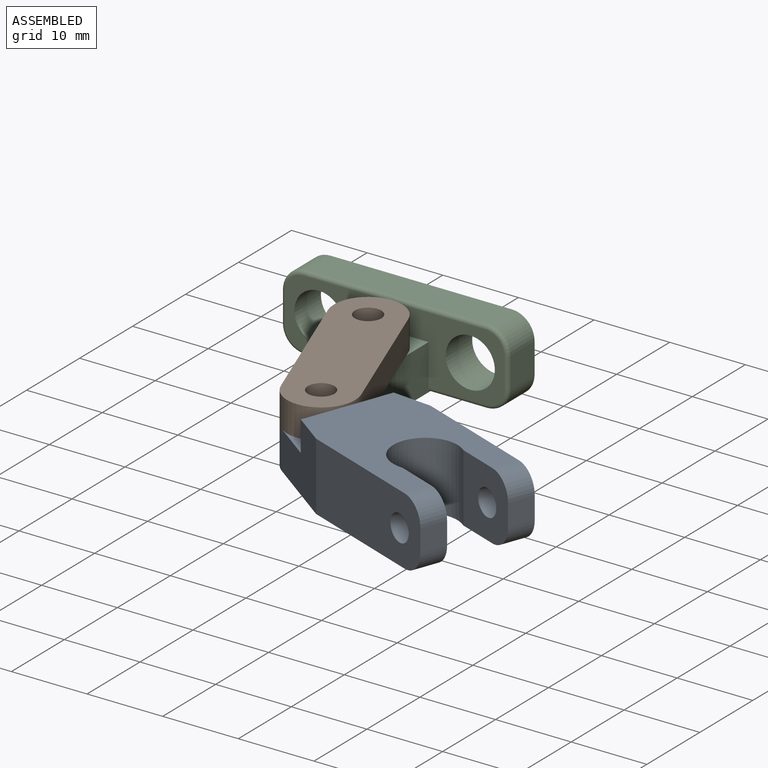
[diagram: assembled view]
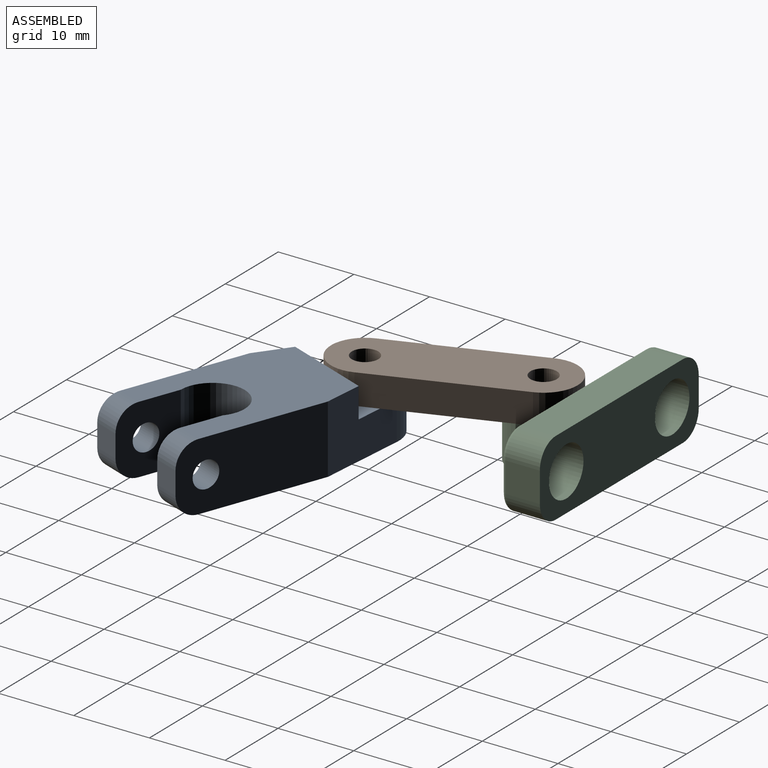
[diagram: assembled view, second angle]
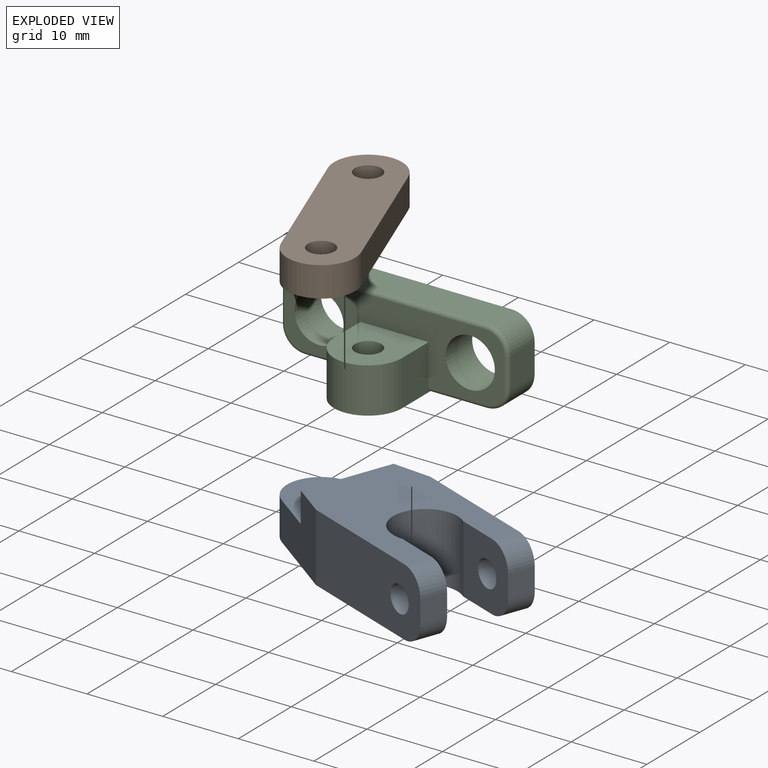
[diagram: exploded view]
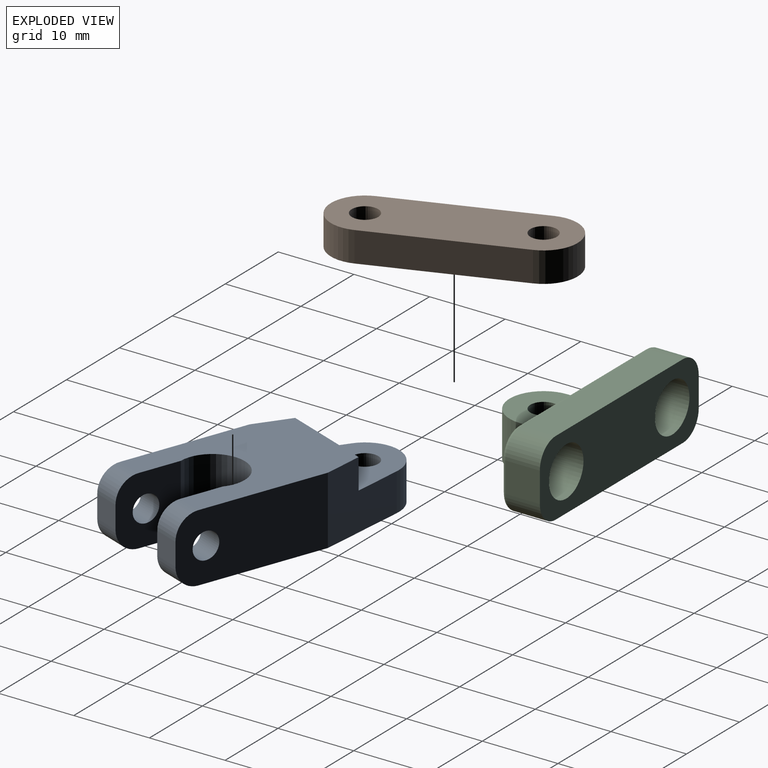
[diagram: exploded view, second angle]
ASSEMBLY  parts=3 mates=2
PART A: 28 faces, bbox 34.5x15x9 mm
  f0: plane 3.5x3mm, normal (1,0,0), area 10.5mm2, adj f7,f19,f24,f25
  f1: cylinder r=1.75mm len=3.5mm, axis (0,0,-1), area 27.5mm2, adj f10,f18
  f2: plane 31.5x15mm, normal (0,0,-1), area 297.7mm2, adj f3,f4,f5,f7,f9,f12,f13,f14
  f3: plane 11.22x9mm, normal (-0.27,0.96,0), area 79.1mm2, adj f2,f4,f6,f9,f10,f11
  f4: cylinder r=4.5mm len=8.66mm, axis (0,0,-1), area 58.3mm2, adj f2,f3,f5,f10
  f5: plane 11.22x9mm, normal (-0.27,-0.96,0), area 79.1mm2, adj f2,f4,f6,f7,f10,f11
  f6: plane 22x15mm, normal (0,0,1), area 238.1mm2, adj f3,f5,f7,f9,f11,f19,f20,f21
  f7: plane 20x9mm, normal (0,-1,0), area 166.5mm2, adj f0,f2,f5,f6,f23,f24,f25
  f8: plane 3.5x3mm, normal (1,0,0), area 10.5mm2, adj f9,f20,f26,f27
  f9: plane 20x9mm, normal (0,1,0), area 166.5mm2, adj f2,f3,f6,f8,f22,f26,f27
  f10: plane 12.18x9.5mm, normal (0,0,1), area 76.2mm2, adj f1,f3,f4,f5,f11
  f11: plane 12.18x4mm, normal (-1,0,0), area 48.7mm2, adj f3,f5,f6,f10
  f12: plane 2.75x2.5mm, normal (-0.5,0.87,0), area 7.9mm2, adj f2,f13,f17,f18
  f13: plane 2.75x2.5mm, normal (0.5,0.87,0), area 7.9mm2, adj f2,f12,f14,f18
  f14: plane 3.18x2.5mm, normal (1,0,0), area 7.9mm2, adj f2,f13,f15,f18
  f15: plane 2.75x2.5mm, normal (0.5,-0.87,0), area 7.9mm2, adj f2,f14,f16,f18
  f16: plane 2.75x2.5mm, normal (-0.5,-0.87,0), area 7.9mm2, adj f2,f15,f17,f18
  f17: plane 3.18x2.5mm, normal (-1,0,0), area 7.9mm2, adj f2,f12,f16,f18
  f18: plane 6.35x5.5mm, normal (0,0,-1), area 16.6mm2, adj f1,f12,f13,f14,f15,f16,f17
  f19: plane 9x8.56mm, normal (0,1,0), area 63.6mm2, adj f0,f2,f6,f21,f23,f24,f25
  f20: plane 9x8.56mm, normal (0,-1,0), area 63.6mm2, adj f2,f6,f8,f21,f22,f26,f27
  f21: cylinder r=4.25mm len=9mm, axis (0,0,1), area 146.5mm2, adj f2,f6,f19,f20
  f22: cylinder r=1.75mm len=3.5mm, axis (0,-1,0), area 38.5mm2, adj f9,f20
  f23: cylinder r=1.75mm len=3.5mm, axis (0,-1,0), area 38.5mm2, adj f7,f19
  f24: cylinder r=3mm len=3.5mm, axis (0,1,0), area 16.5mm2, adj f0,f2,f7,f19
  f25: cylinder r=3mm len=3.5mm, axis (0,-1,0), area 16.5mm2, adj f0,f6,f7,f19
  f26: cylinder r=3mm len=3.5mm, axis (0,1,0), area 16.5mm2, adj f2,f8,f9,f20
  f27: cylinder r=3mm len=3.5mm, axis (0,-1,0), area 16.5mm2, adj f6,f8,f9,f20
PART B: 8 faces, bbox 29x9x4 mm
  f0: plane 20x4mm, normal (0,1,0), area 80mm2, adj f1,f3,f6,f7
  f1: cylinder r=4.5mm len=9mm, axis (0,0,-1), area 56.5mm2, adj f0,f2,f6,f7
  f2: plane 20x4mm, normal (0,-1,0), area 80mm2, adj f1,f3,f6,f7
  f3: cylinder r=4.5mm len=9mm, axis (0,0,-1), area 56.5mm2, adj f0,f2,f6,f7
  f4: cylinder r=1.75mm len=4mm, axis (0,0,-1), area 44mm2, adj f6,f7
  f5: cylinder r=1.75mm len=4mm, axis (0,0,-1), area 44mm2, adj f6,f7
  f6: plane 29x9mm, normal (0,0,1), area 224.4mm2, adj f0,f1,f2,f3,f4,f5
  f7: plane 29x9mm, normal (0,0,-1), area 224.4mm2, adj f0,f1,f2,f3,f4,f5
PART C: 33 faces, bbox 30.5x14.5x10.5 mm
  f0: cylinder r=1.75mm len=3.5mm, axis (0,0,-1), area 38.5mm2, adj f12,f19
  f1: plane 24x14.5mm, normal (0,0,-1), area 163.1mm2, adj f2,f3,f4,f9,f13,f14,f15,f16
  f2: plane 6x5.5mm, normal (-1,0,0), area 30.1mm2, adj f1,f4,f7,f12,f32
  f3: plane 6x5.5mm, normal (1,0,0), area 30.1mm2, adj f1,f4,f7,f12,f24
  f4: cylinder r=4.5mm len=9mm, axis (0,0,-1), area 84.8mm2, adj f1,f2,f3,f12
  f5: plane 24x4.5mm, normal (0,0,1), area 108mm2, adj f9,f22,f23,f28
  f6: plane 4.5x4mm, normal (-1,0,0), area 18mm2, adj f9,f21,f23,f30
  f7: plane 29x9mm, normal (0,-1,0), area 139.8mm2, adj f2,f3,f10,f11,f12,f24,f25,f26
  f8: plane 4.5x4mm, normal (1,0,0), area 18mm2, adj f9,f20,f22,f26
  f9: plane 30x10mm, normal (0,1,0), area 225.9mm2, adj f1,f5,f6,f8,f10,f11,f20,f21
  f10: cylinder r=3.25mm len=6.5mm, axis (0,1,0), area 102.1mm2, adj f7,f9
  f11: cylinder r=3.25mm len=6.5mm, axis (0,1,0), area 102.1mm2, adj f7,f9
  f12: plane 9.5x9mm, normal (0,0,1), area 67.2mm2, adj f0,f2,f3,f4,f7
  f13: plane 2.75x2.5mm, normal (-0.5,0.87,0), area 7.9mm2, adj f1,f14,f18,f19
  f14: plane 2.75x2.5mm, normal (0.5,0.87,0), area 7.9mm2, adj f1,f13,f15,f19
  f15: plane 3.18x2.5mm, normal (1,0,0), area 7.9mm2, adj f1,f14,f16,f19
  f16: plane 2.75x2.5mm, normal (0.5,-0.87,0), area 7.9mm2, adj f1,f15,f17,f19
  f17: plane 2.75x2.5mm, normal (-0.5,-0.87,0), area 7.9mm2, adj f1,f16,f18,f19
  f18: plane 3.18x2.5mm, normal (-1,0,0), area 7.9mm2, adj f1,f13,f17,f19
  f19: plane 6.35x5.5mm, normal (0,0,-1), area 16.6mm2, adj f0,f13,f14,f15,f16,f17,f18
  f20: cylinder r=3mm len=4.5mm, axis (0,1,0), area 21.2mm2, adj f1,f8,f9,f25
  f21: cylinder r=3mm len=4.5mm, axis (0,-1,0), area 21.2mm2, adj f1,f6,f9,f31
  f22: cylinder r=3mm len=4.5mm, axis (0,-1,0), area 21.2mm2, adj f5,f8,f9,f27
  f23: cylinder r=3mm len=4.5mm, axis (0,1,0), area 21.2mm2, adj f5,f6,f9,f29
  f24: cylinder r=0.5mm len=7.5mm, axis (1,0,0), area 5.9mm2, adj f1,f3,f7,f25
  f25: torus R=2.5mm, axis (0,1,0), area 3.5mm2, adj f7,f20,f24,f26
  f26: cylinder r=0.5mm len=4mm, axis (0,0,-1), area 3.1mm2, adj f7,f8,f25,f27
  f27: torus R=2.5mm, axis (0,1,0), area 3.5mm2, adj f7,f22,f26,f28
  f28: cylinder r=0.5mm len=24mm, axis (-1,0,0), area 18.8mm2, adj f5,f7,f27,f29
  f29: torus R=2.5mm, axis (0,1,0), area 3.5mm2, adj f7,f23,f28,f30
  f30: cylinder r=0.5mm len=4mm, axis (0,0,1), area 3.1mm2, adj f6,f7,f29,f31
  f31: torus R=2.5mm, axis (0,1,0), area 3.5mm2, adj f7,f21,f30,f32
  f32: cylinder r=0.5mm len=7.5mm, axis (1,0,0), area 5.9mm2, adj f1,f2,f7,f31
PLACE A rot(axis=(0,0,-1),20.6deg) t=(18.92,-24.26,1)mm
PLACE B rot(axis=(0,0,-1),69.7deg) t=(12,-5.5,6)mm
PLACE C t=(-3,-0.5,0)mm
MATE revolute C.f0 <-> B.f1  axis (0,0,1) through (12,-5.5,6)mm
MATE revolute A.f1 <-> B.f3  axis (0,0,1) through (18.92,-24.26,6)mm
